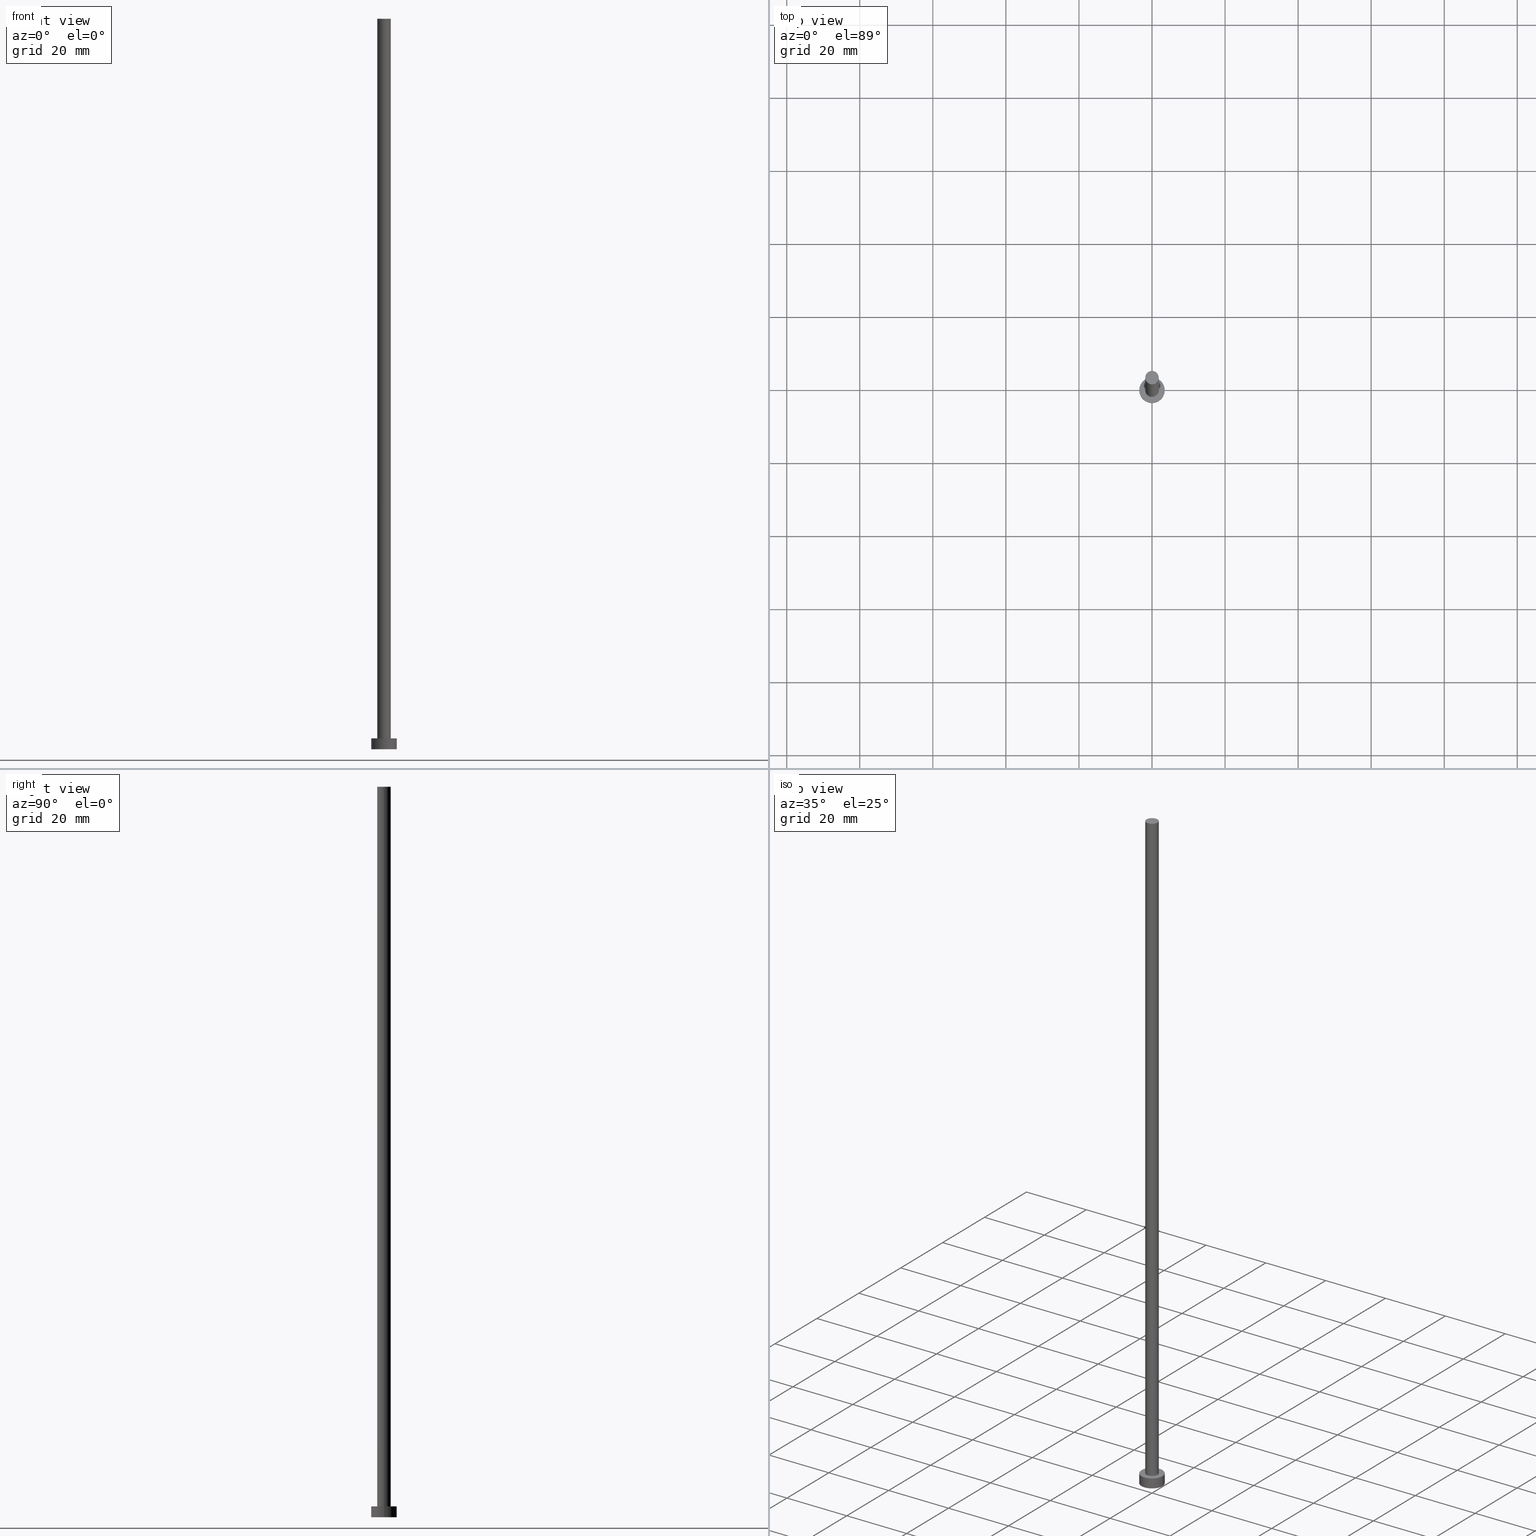
[diagram: canonical four-view strip — front | top / right | iso, engineering-drawing reading convention]
A machine part, canonical four-view strip (front | top / right | iso — engineering-drawing reading convention). The complete STEP part file that produces these views, byte-faithful:
ISO-10303-21;
HEADER;
FILE_DESCRIPTION (( 'STEP AP203' ),
    '1' );
FILE_NAME ('8794.STEP',
    '2026-02-11T15:51:01',
    ( '' ),
    ( '' ),
    'SwSTEP 2.0',
    'SolidWorks 2019',
    '' );
FILE_SCHEMA (( 'CONFIG_CONTROL_DESIGN' ));
ENDSEC;

DATA;
#1 = ADVANCED_BREP_SHAPE_REPRESENTATION ( '8794', ( #242, #176 ), #52 ) ;
#2 = DIRECTION ( 'NONE',  ( 0.000000000000000000, 0.000000000000000000, 1.000000000000000000 ) ) ;
#3 = CARTESIAN_POINT ( 'NONE',  ( -3.500000000000000444, 0.000000000000000000, 3.000000000000000000 ) ) ;
#4 = EDGE_CURVE ( 'NONE', #183, #167, #207, .T. ) ;
#5 = CARTESIAN_POINT ( 'NONE',  ( -3.500000000000000444, 0.000000000000000000, 0.000000000000000000 ) ) ;
#6 = CC_DESIGN_PERSON_AND_ORGANIZATION_ASSIGNMENT ( #200, #215, ( #222 ) ) ;
#7 = CARTESIAN_POINT ( 'NONE',  ( 1.850000000000000089, 2.265596578422603100E-16, 3.000000000000000000 ) ) ;
#8 = SHAPE_DEFINITION_REPRESENTATION ( #180, #1 ) ;
#9 = APPROVAL_ROLE ( '' ) ;
#10 = APPROVAL_PERSON_ORGANIZATION ( #181, #144, #154 ) ;
#11 = CARTESIAN_POINT ( 'NONE',  ( 0.000000000000000000, 0.000000000000000000, 0.000000000000000000 ) ) ;
#12 = DIRECTION ( 'NONE',  ( 1.000000000000000000, 0.000000000000000000, 0.000000000000000000 ) ) ;
#13 = LINE ( 'NONE', #85, #92 ) ;
#14 = EDGE_LOOP ( 'NONE', ( #51, #123, #136, #205 ) ) ;
#15 = VERTEX_POINT ( 'NONE', #145 ) ;
#16 = EDGE_CURVE ( 'NONE', #146, #15, #23, .T. ) ;
#17 = CARTESIAN_POINT ( 'NONE',  ( 0.000000000000000000, 0.000000000000000000, 200.0000000000000000 ) ) ;
#18 = VECTOR ( 'NONE', #133, 1000.000000000000000 ) ;
#19 = VECTOR ( 'NONE', #210, 1000.000000000000000 ) ;
#20 = APPLICATION_CONTEXT ( 'configuration controlled 3d designs of mechanical parts and assemblies' ) ;
#21 = DATE_AND_TIME ( #239, #150 ) ;
#22 = APPLICATION_PROTOCOL_DEFINITION ( 'international standard', 'config_control_design', 1994, #57 ) ;
#23 = CIRCLE ( 'NONE', #231, 3.500000000000000444 ) ;
#24 = DIRECTION ( 'NONE',  ( -0.000000000000000000, -0.000000000000000000, -1.000000000000000000 ) ) ;
#25 = APPROVAL_STATUS ( 'not_yet_approved' ) ;
#26 =( NAMED_UNIT ( * ) PLANE_ANGLE_UNIT ( ) SI_UNIT ( $, .RADIAN. ) );
#27 = DATE_AND_TIME ( #139, #125 ) ;
#28 = CYLINDRICAL_SURFACE ( 'NONE', #172, 3.500000000000000444 ) ;
#29 = CIRCLE ( 'NONE', #46, 3.500000000000000444 ) ;
#30 = DATE_AND_TIME ( #116, #82 ) ;
#31 = DIRECTION ( 'NONE',  ( -0.000000000000000000, -0.000000000000000000, -1.000000000000000000 ) ) ;
#32 = DIRECTION ( 'NONE',  ( 1.000000000000000000, 0.000000000000000000, 0.000000000000000000 ) ) ;
#33 = ORIENTED_EDGE ( 'NONE', *, *, #229, .F. ) ;
#34 = EDGE_CURVE ( 'NONE', #249, #187, #151, .T. ) ;
#35 = ORIENTED_EDGE ( 'NONE', *, *, #63, .F. ) ;
#36 = EDGE_CURVE ( 'NONE', #146, #126, #230, .T. ) ;
#37 = CARTESIAN_POINT ( 'NONE',  ( 0.000000000000000000, 0.000000000000000000, 3.000000000000000000 ) ) ;
#38 = ORIENTED_EDGE ( 'NONE', *, *, #97, .F. ) ;
#39 = CYLINDRICAL_SURFACE ( 'NONE', #59, 1.850000000000000089 ) ;
#40 = EDGE_CURVE ( 'NONE', #167, #183, #232, .T. ) ;
#41 = FACE_OUTER_BOUND ( 'NONE', #185, .T. ) ;
#42 = CYLINDRICAL_SURFACE ( 'NONE', #100, 3.500000000000000444 ) ;
#43 = ORIENTED_EDGE ( 'NONE', *, *, #122, .F. ) ;
#44 = PERSON_AND_ORGANIZATION ( #214, #227 ) ;
#45 = DIRECTION ( 'NONE',  ( 1.000000000000000000, 0.000000000000000000, 0.000000000000000000 ) ) ;
#46 = AXIS2_PLACEMENT_3D ( 'NONE', #73, #127, #206 ) ;
#47 = PLANE ( 'NONE',  #79 ) ;
#48 = EDGE_LOOP ( 'NONE', ( #108, #148, #72, #33 ) ) ;
#49 = APPROVAL_ROLE ( '' ) ;
#50 = ADVANCED_FACE ( 'NONE', ( #102 ), #39, .T. ) ;
#51 = ORIENTED_EDGE ( 'NONE', *, *, #208, .F. ) ;
#52 =( GEOMETRIC_REPRESENTATION_CONTEXT ( 3 ) GLOBAL_UNCERTAINTY_ASSIGNED_CONTEXT ( ( #235 ) ) GLOBAL_UNIT_ASSIGNED_CONTEXT ( ( #196, #26, #217 ) ) REPRESENTATION_CONTEXT ( 'NONE', 'WORKASPACE' ) );
#53 = FACE_OUTER_BOUND ( 'NONE', #103, .T. ) ;
#54 = DIRECTION ( 'NONE',  ( -1.000000000000000000, 0.000000000000000000, 0.000000000000000000 ) ) ;
#55 = CC_DESIGN_PERSON_AND_ORGANIZATION_ASSIGNMENT ( #104, #219, ( #222 ) ) ;
#56 = CC_DESIGN_PERSON_AND_ORGANIZATION_ASSIGNMENT ( #98, #141, ( #134 ) ) ;
#57 = APPLICATION_CONTEXT ( 'configuration controlled 3d designs of mechanical parts and assemblies' ) ;
#58 = CARTESIAN_POINT ( 'NONE',  ( -1.850000000000000089, 0.000000000000000000, 200.0000000000000000 ) ) ;
#59 = AXIS2_PLACEMENT_3D ( 'NONE', #149, #120, #54 ) ;
#60 = APPROVAL_DATE_TIME ( #21, #74 ) ;
#61 = APPROVAL_STATUS ( 'not_yet_approved' ) ;
#62 = FACE_OUTER_BOUND ( 'NONE', #166, .T. ) ;
#63 = EDGE_CURVE ( 'NONE', #126, #247, #29, .T. ) ;
#64 = DIRECTION ( 'NONE',  ( -0.000000000000000000, -0.000000000000000000, -1.000000000000000000 ) ) ;
#65 = AXIS2_PLACEMENT_3D ( 'NONE', #109, #140, #223 ) ;
#66 = ADVANCED_FACE ( 'NONE', ( #53 ), #188, .T. ) ;
#67 = CARTESIAN_POINT ( 'NONE',  ( 0.000000000000000000, 0.000000000000000000, 3.000000000000000000 ) ) ;
#68 = EDGE_LOOP ( 'NONE', ( #71, #35 ) ) ;
#69 = COORDINATED_UNIVERSAL_TIME_OFFSET ( 1, 0, .AHEAD. ) ;
#70 = ORIENTED_EDGE ( 'NONE', *, *, #4, .F. ) ;
#71 = ORIENTED_EDGE ( 'NONE', *, *, #91, .F. ) ;
#72 = ORIENTED_EDGE ( 'NONE', *, *, #63, .T. ) ;
#73 = CARTESIAN_POINT ( 'NONE',  ( 0.000000000000000000, 0.000000000000000000, 0.000000000000000000 ) ) ;
#74 = APPROVAL ( #96, 'NEUR�EN�' ) ;
#75 = DIRECTION ( 'NONE',  ( 0.000000000000000000, 0.000000000000000000, 1.000000000000000000 ) ) ;
#76 = DESIGN_CONTEXT ( 'detailed design', #20, 'design' ) ;
#77 = LOCAL_TIME ( 16, 51, 1.000000000000000000, #184 ) ;
#78 = LOCAL_TIME ( 16, 51, 1.000000000000000000, #234 ) ;
#79 = AXIS2_PLACEMENT_3D ( 'NONE', #11, #158, #240 ) ;
#80 = PERSON_AND_ORGANIZATION_ROLE ( 'design_owner' ) ;
#81 = COORDINATED_UNIVERSAL_TIME_OFFSET ( 1, 0, .AHEAD. ) ;
#82 = LOCAL_TIME ( 16, 51, 1.000000000000000000, #248 ) ;
#83 = CARTESIAN_POINT ( 'NONE',  ( 3.500000000000000444, 4.286263797015737088E-16, 0.000000000000000000 ) ) ;
#84 = FACE_OUTER_BOUND ( 'NONE', #68, .T. ) ;
#85 = CARTESIAN_POINT ( 'NONE',  ( -1.850000000000000089, 0.000000000000000000, 200.0000000000000000 ) ) ;
#86 = EDGE_LOOP ( 'NONE', ( #253, #106 ) ) ;
#87 = PRODUCT_RELATED_PRODUCT_CATEGORY ( 'detail', '', ( #243 ) ) ;
#88 = ORIENTED_EDGE ( 'NONE', *, *, #208, .T. ) ;
#89 = ORIENTED_EDGE ( 'NONE', *, *, #91, .T. ) ;
#90 = DIRECTION ( 'NONE',  ( 0.000000000000000000, 0.000000000000000000, 1.000000000000000000 ) ) ;
#91 = EDGE_CURVE ( 'NONE', #247, #126, #255, .T. ) ;
#92 = VECTOR ( 'NONE', #31, 1000.000000000000000 ) ;
#93 = PERSON_AND_ORGANIZATION_ROLE ( 'creator' ) ;
#94 = CARTESIAN_POINT ( 'NONE',  ( 0.000000000000000000, 0.000000000000000000, 3.000000000000000000 ) ) ;
#95 = AXIS2_PLACEMENT_3D ( 'NONE', #17, #90, #182 ) ;
#96 = APPROVAL_STATUS ( 'not_yet_approved' ) ;
#97 = EDGE_CURVE ( 'NONE', #249, #167, #13, .T. ) ;
#98 = PERSON_AND_ORGANIZATION ( #214, #227 ) ;
#99 = CARTESIAN_POINT ( 'NONE',  ( 0.000000000000000000, 0.000000000000000000, 3.000000000000000000 ) ) ;
#100 = AXIS2_PLACEMENT_3D ( 'NONE', #114, #24, #233 ) ;
#101 = DIRECTION ( 'NONE',  ( -0.000000000000000000, -0.000000000000000000, -1.000000000000000000 ) ) ;
#102 = FACE_OUTER_BOUND ( 'NONE', #14, .T. ) ;
#103 = EDGE_LOOP ( 'NONE', ( #224, #155 ) ) ;
#104 = PERSON_AND_ORGANIZATION ( #214, #227 ) ;
#105 = AXIS2_PLACEMENT_3D ( 'NONE', #220, #101, #159 ) ;
#106 = ORIENTED_EDGE ( 'NONE', *, *, #16, .T. ) ;
#107 = EDGE_LOOP ( 'NONE', ( #186, #70 ) ) ;
#108 = ORIENTED_EDGE ( 'NONE', *, *, #16, .F. ) ;
#109 = CARTESIAN_POINT ( 'NONE',  ( 0.000000000000000000, 0.000000000000000000, 3.000000000000000000 ) ) ;
#110 = CLOSED_SHELL ( 'NONE', ( #170, #252, #191, #218, #165, #50, #66 ) ) ;
#111 = CC_DESIGN_PERSON_AND_ORGANIZATION_ASSIGNMENT ( #44, #93, ( #236 ) ) ;
#112 = LINE ( 'NONE', #237, #19 ) ;
#113 = VECTOR ( 'NONE', #64, 1000.000000000000000 ) ;
#114 = CARTESIAN_POINT ( 'NONE',  ( 0.000000000000000000, 0.000000000000000000, 3.000000000000000000 ) ) ;
#115 = ORIENTED_EDGE ( 'NONE', *, *, #229, .T. ) ;
#116 = CALENDAR_DATE ( 2026, 11, 2 ) ;
#117 = DIRECTION ( 'NONE',  ( 0.000000000000000000, 0.000000000000000000, 1.000000000000000000 ) ) ;
#118 = APPROVAL_PERSON_ORGANIZATION ( #193, #74, #9 ) ;
#119 = DATE_AND_TIME ( #175, #77 ) ;
#120 = DIRECTION ( 'NONE',  ( -0.000000000000000000, -0.000000000000000000, -1.000000000000000000 ) ) ;
#121 = APPROVAL_DATE_TIME ( #30, #144 ) ;
#122 = EDGE_CURVE ( 'NONE', #187, #249, #177, .T. ) ;
#123 = ORIENTED_EDGE ( 'NONE', *, *, #34, .F. ) ;
#124 = AXIS2_PLACEMENT_3D ( 'NONE', #99, #2, #174 ) ;
#125 = LOCAL_TIME ( 16, 51, 1.000000000000000000, #69 ) ;
#126 = VERTEX_POINT ( 'NONE', #83 ) ;
#127 = DIRECTION ( 'NONE',  ( 0.000000000000000000, 0.000000000000000000, 1.000000000000000000 ) ) ;
#128 = DIRECTION ( 'NONE',  ( 0.000000000000000000, 0.000000000000000000, 1.000000000000000000 ) ) ;
#129 = CC_DESIGN_DATE_AND_TIME_ASSIGNMENT ( #27, #238, ( #134 ) ) ;
#130 = CIRCLE ( 'NONE', #190, 3.500000000000000444 ) ;
#131 = PERSON_AND_ORGANIZATION ( #214, #227 ) ;
#132 = EDGE_CURVE ( 'NONE', #15, #146, #130, .T. ) ;
#133 = DIRECTION ( 'NONE',  ( -0.000000000000000000, -0.000000000000000000, -1.000000000000000000 ) ) ;
#134 = SECURITY_CLASSIFICATION ( '', '', #163 ) ;
#135 = FACE_OUTER_BOUND ( 'NONE', #48, .T. ) ;
#136 = ORIENTED_EDGE ( 'NONE', *, *, #97, .T. ) ;
#137 = FACE_OUTER_BOUND ( 'NONE', #86, .T. ) ;
#138 = CYLINDRICAL_SURFACE ( 'NONE', #105, 1.850000000000000089 ) ;
#139 = CALENDAR_DATE ( 2026, 11, 2 ) ;
#140 = DIRECTION ( 'NONE',  ( 0.000000000000000000, 0.000000000000000000, 1.000000000000000000 ) ) ;
#141 = PERSON_AND_ORGANIZATION_ROLE ( 'classification_officer' ) ;
#142 = ORIENTED_EDGE ( 'NONE', *, *, #4, .T. ) ;
#143 = PERSON_AND_ORGANIZATION ( #214, #227 ) ;
#144 = APPROVAL ( #25, 'NEUR�EN�' ) ;
#145 = CARTESIAN_POINT ( 'NONE',  ( -3.500000000000000444, 0.000000000000000000, 3.000000000000000000 ) ) ;
#146 = VERTEX_POINT ( 'NONE', #178 ) ;
#147 = CARTESIAN_POINT ( 'NONE',  ( 0.000000000000000000, 0.000000000000000000, 200.0000000000000000 ) ) ;
#148 = ORIENTED_EDGE ( 'NONE', *, *, #36, .T. ) ;
#149 = CARTESIAN_POINT ( 'NONE',  ( 0.000000000000000000, 0.000000000000000000, 200.0000000000000000 ) ) ;
#150 = LOCAL_TIME ( 16, 51, 1.000000000000000000, #81 ) ;
#151 = CIRCLE ( 'NONE', #209, 1.850000000000000089 ) ;
#152 = APPLICATION_PROTOCOL_DEFINITION ( 'international standard', 'config_control_design', 1994, #20 ) ;
#153 = MECHANICAL_CONTEXT ( 'NONE', #57, 'mechanical' ) ;
#154 = APPROVAL_ROLE ( '' ) ;
#155 = ORIENTED_EDGE ( 'NONE', *, *, #122, .T. ) ;
#156 = CARTESIAN_POINT ( 'NONE',  ( 1.850000000000000089, 2.265596578422603100E-16, 200.0000000000000000 ) ) ;
#157 = DATE_AND_TIME ( #171, #78 ) ;
#158 = DIRECTION ( 'NONE',  ( 0.000000000000000000, 0.000000000000000000, 1.000000000000000000 ) ) ;
#159 = DIRECTION ( 'NONE',  ( -1.000000000000000000, 0.000000000000000000, 0.000000000000000000 ) ) ;
#160 = APPROVAL_DATE_TIME ( #119, #225 ) ;
#161 = DIRECTION ( 'NONE',  ( 1.000000000000000000, 0.000000000000000000, 0.000000000000000000 ) ) ;
#162 = CC_DESIGN_PERSON_AND_ORGANIZATION_ASSIGNMENT ( #131, #80, ( #243 ) ) ;
#163 = SECURITY_CLASSIFICATION_LEVEL ( 'unclassified' ) ;
#164 = DIRECTION ( 'NONE',  ( 1.000000000000000000, 0.000000000000000000, 0.000000000000000000 ) ) ;
#165 = ADVANCED_FACE ( 'NONE', ( #84 ), #47, .F. ) ;
#166 = EDGE_LOOP ( 'NONE', ( #43, #88, #142, #38 ) ) ;
#167 = VERTEX_POINT ( 'NONE', #201 ) ;
#168 = CARTESIAN_POINT ( 'NONE',  ( 0.000000000000000000, 0.000000000000000000, 0.000000000000000000 ) ) ;
#169 = CC_DESIGN_APPROVAL ( #225, ( #134 ) ) ;
#170 = ADVANCED_FACE ( 'NONE', ( #62 ), #138, .T. ) ;
#171 = CALENDAR_DATE ( 2026, 11, 2 ) ;
#172 = AXIS2_PLACEMENT_3D ( 'NONE', #94, #198, #213 ) ;
#173 = PLANE ( 'NONE',  #124 ) ;
#174 = DIRECTION ( 'NONE',  ( 1.000000000000000000, 0.000000000000000000, -0.000000000000000000 ) ) ;
#175 = CALENDAR_DATE ( 2026, 11, 2 ) ;
#176 = AXIS2_PLACEMENT_3D ( 'NONE', #211, #75, #194 ) ;
#177 = CIRCLE ( 'NONE', #250, 1.850000000000000089 ) ;
#178 = CARTESIAN_POINT ( 'NONE',  ( 3.500000000000000444, 4.286263797015737088E-16, 3.000000000000000000 ) ) ;
#179 = CARTESIAN_POINT ( 'NONE',  ( 3.500000000000000444, 4.286263797015737088E-16, 3.000000000000000000 ) ) ;
#180 = PRODUCT_DEFINITION_SHAPE ( 'NONE', 'NONE',  #236 ) ;
#181 = PERSON_AND_ORGANIZATION ( #214, #227 ) ;
#182 = DIRECTION ( 'NONE',  ( 1.000000000000000000, 0.000000000000000000, -0.000000000000000000 ) ) ;
#183 = VERTEX_POINT ( 'NONE', #7 ) ;
#184 = COORDINATED_UNIVERSAL_TIME_OFFSET ( 1, 0, .AHEAD. ) ;
#185 = EDGE_LOOP ( 'NONE', ( #226, #202, #115, #89 ) ) ;
#186 = ORIENTED_EDGE ( 'NONE', *, *, #40, .F. ) ;
#187 = VERTEX_POINT ( 'NONE', #156 ) ;
#188 = PLANE ( 'NONE',  #95 ) ;
#189 = CC_DESIGN_APPROVAL ( #74, ( #236 ) ) ;
#190 = AXIS2_PLACEMENT_3D ( 'NONE', #67, #254, #12 ) ;
#191 = ADVANCED_FACE ( 'NONE', ( #41 ), #28, .T. ) ;
#192 = CC_DESIGN_DATE_AND_TIME_ASSIGNMENT ( #157, #197, ( #236 ) ) ;
#193 = PERSON_AND_ORGANIZATION ( #214, #227 ) ;
#194 = DIRECTION ( 'NONE',  ( 1.000000000000000000, 0.000000000000000000, 0.000000000000000000 ) ) ;
#195 = LINE ( 'NONE', #3, #18 ) ;
#196 =( LENGTH_UNIT ( ) NAMED_UNIT ( * ) SI_UNIT ( .MILLI., .METRE. ) );
#197 = DATE_TIME_ROLE ( 'creation_date' ) ;
#198 = DIRECTION ( 'NONE',  ( -0.000000000000000000, -0.000000000000000000, -1.000000000000000000 ) ) ;
#199 = DIRECTION ( 'NONE',  ( 0.000000000000000000, 0.000000000000000000, 1.000000000000000000 ) ) ;
#200 = PERSON_AND_ORGANIZATION ( #214, #227 ) ;
#201 = CARTESIAN_POINT ( 'NONE',  ( -1.850000000000000089, 0.000000000000000000, 3.000000000000000000 ) ) ;
#202 = ORIENTED_EDGE ( 'NONE', *, *, #132, .F. ) ;
#203 = AXIS2_PLACEMENT_3D ( 'NONE', #168, #199, #161 ) ;
#204 = CARTESIAN_POINT ( 'NONE',  ( 0.000000000000000000, 0.000000000000000000, 3.000000000000000000 ) ) ;
#205 = ORIENTED_EDGE ( 'NONE', *, *, #40, .T. ) ;
#206 = DIRECTION ( 'NONE',  ( 1.000000000000000000, 0.000000000000000000, 0.000000000000000000 ) ) ;
#207 = CIRCLE ( 'NONE', #245, 1.850000000000000089 ) ;
#208 = EDGE_CURVE ( 'NONE', #187, #183, #112, .T. ) ;
#209 = AXIS2_PLACEMENT_3D ( 'NONE', #147, #228, #45 ) ;
#210 = DIRECTION ( 'NONE',  ( -0.000000000000000000, -0.000000000000000000, -1.000000000000000000 ) ) ;
#211 = CARTESIAN_POINT ( 'NONE',  ( 0.000000000000000000, 0.000000000000000000, 0.000000000000000000 ) ) ;
#212 = FACE_BOUND ( 'NONE', #107, .T. ) ;
#213 = DIRECTION ( 'NONE',  ( -1.000000000000000000, 0.000000000000000000, 0.000000000000000000 ) ) ;
#214 = PERSON ( 'NEUR�EN�', 'NEUR�EN�', 'NEUR�EN�', ('NEUR�EN�'), ('NEUR�EN�'), ('NEUR�EN�') ) ;
#215 = PERSON_AND_ORGANIZATION_ROLE ( 'design_supplier' ) ;
#216 = DIRECTION ( 'NONE',  ( 0.000000000000000000, 0.000000000000000000, 1.000000000000000000 ) ) ;
#217 =( NAMED_UNIT ( * ) SI_UNIT ( $, .STERADIAN. ) SOLID_ANGLE_UNIT ( ) );
#218 = ADVANCED_FACE ( 'NONE', ( #212, #137 ), #173, .T. ) ;
#219 = PERSON_AND_ORGANIZATION_ROLE ( 'creator' ) ;
#220 = CARTESIAN_POINT ( 'NONE',  ( 0.000000000000000000, 0.000000000000000000, 200.0000000000000000 ) ) ;
#221 = CC_DESIGN_SECURITY_CLASSIFICATION ( #134, ( #222 ) ) ;
#222 = PRODUCT_DEFINITION_FORMATION_WITH_SPECIFIED_SOURCE ( 'LIBOVOLN�', '', #243, .NOT_KNOWN. ) ;
#223 = DIRECTION ( 'NONE',  ( 1.000000000000000000, 0.000000000000000000, 0.000000000000000000 ) ) ;
#224 = ORIENTED_EDGE ( 'NONE', *, *, #34, .T. ) ;
#225 = APPROVAL ( #61, 'NEUR�EN�' ) ;
#226 = ORIENTED_EDGE ( 'NONE', *, *, #36, .F. ) ;
#227 = ORGANIZATION ( 'NEUR�EN�', 'NEUR�EN�', '' ) ;
#228 = DIRECTION ( 'NONE',  ( 0.000000000000000000, 0.000000000000000000, 1.000000000000000000 ) ) ;
#229 = EDGE_CURVE ( 'NONE', #15, #247, #195, .T. ) ;
#230 = LINE ( 'NONE', #179, #113 ) ;
#231 = AXIS2_PLACEMENT_3D ( 'NONE', #37, #117, #32 ) ;
#232 = CIRCLE ( 'NONE', #65, 1.850000000000000089 ) ;
#233 = DIRECTION ( 'NONE',  ( -1.000000000000000000, 0.000000000000000000, 0.000000000000000000 ) ) ;
#234 = COORDINATED_UNIVERSAL_TIME_OFFSET ( 1, 0, .AHEAD. ) ;
#235 = UNCERTAINTY_MEASURE_WITH_UNIT (LENGTH_MEASURE( 1.000000000000000082E-05 ), #196, 'distance_accuracy_value', 'NONE');
#236 = PRODUCT_DEFINITION ( 'NEZN�M�', '', #222, #76 ) ;
#237 = CARTESIAN_POINT ( 'NONE',  ( 1.850000000000000089, 2.265596578422603100E-16, 200.0000000000000000 ) ) ;
#238 = DATE_TIME_ROLE ( 'classification_date' ) ;
#239 = CALENDAR_DATE ( 2026, 11, 2 ) ;
#240 = DIRECTION ( 'NONE',  ( 1.000000000000000000, 0.000000000000000000, -0.000000000000000000 ) ) ;
#241 = CARTESIAN_POINT ( 'NONE',  ( 0.000000000000000000, 0.000000000000000000, 200.0000000000000000 ) ) ;
#242 = MANIFOLD_SOLID_BREP ( 'P�idat vysunut�m3', #110 ) ;
#243 = PRODUCT ( '8794', '8794', '', ( #153 ) ) ;
#244 = CC_DESIGN_APPROVAL ( #144, ( #222 ) ) ;
#245 = AXIS2_PLACEMENT_3D ( 'NONE', #204, #216, #164 ) ;
#246 = DIRECTION ( 'NONE',  ( 1.000000000000000000, 0.000000000000000000, 0.000000000000000000 ) ) ;
#247 = VERTEX_POINT ( 'NONE', #5 ) ;
#248 = COORDINATED_UNIVERSAL_TIME_OFFSET ( 1, 0, .AHEAD. ) ;
#249 = VERTEX_POINT ( 'NONE', #58 ) ;
#250 = AXIS2_PLACEMENT_3D ( 'NONE', #241, #128, #246 ) ;
#251 = APPROVAL_PERSON_ORGANIZATION ( #143, #225, #49 ) ;
#252 = ADVANCED_FACE ( 'NONE', ( #135 ), #42, .T. ) ;
#253 = ORIENTED_EDGE ( 'NONE', *, *, #132, .T. ) ;
#254 = DIRECTION ( 'NONE',  ( 0.000000000000000000, 0.000000000000000000, 1.000000000000000000 ) ) ;
#255 = CIRCLE ( 'NONE', #203, 3.500000000000000444 ) ;
ENDSEC;
END-ISO-10303-21;
